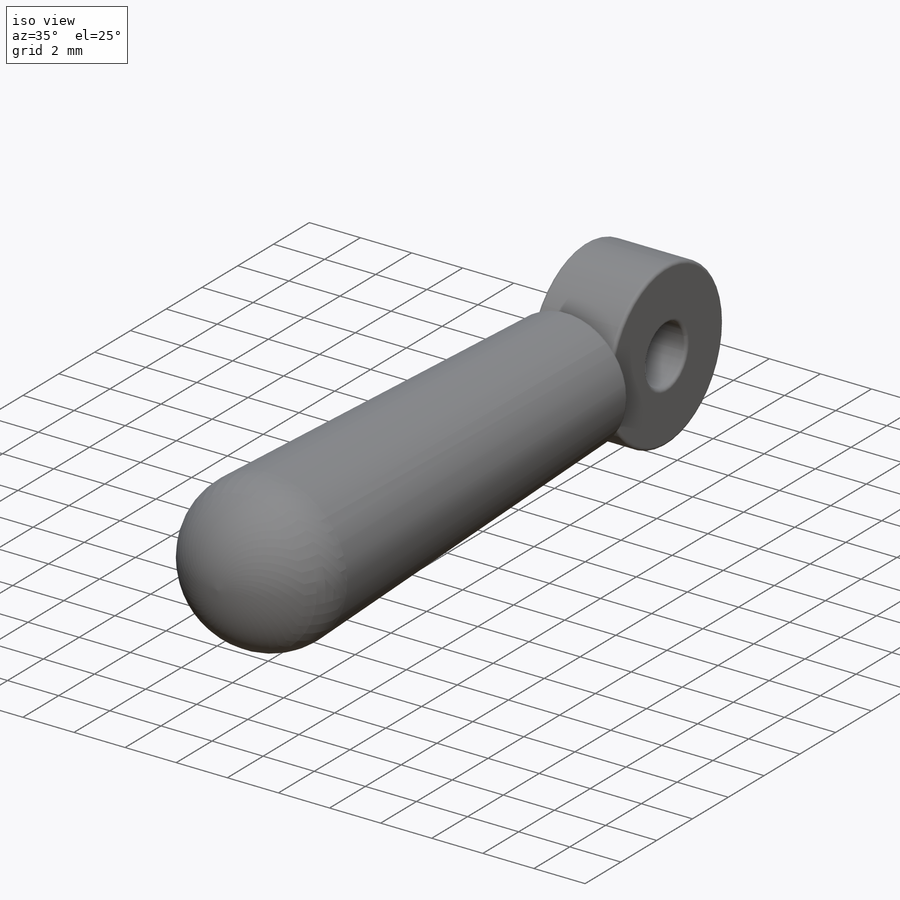
[diagram: iso view]
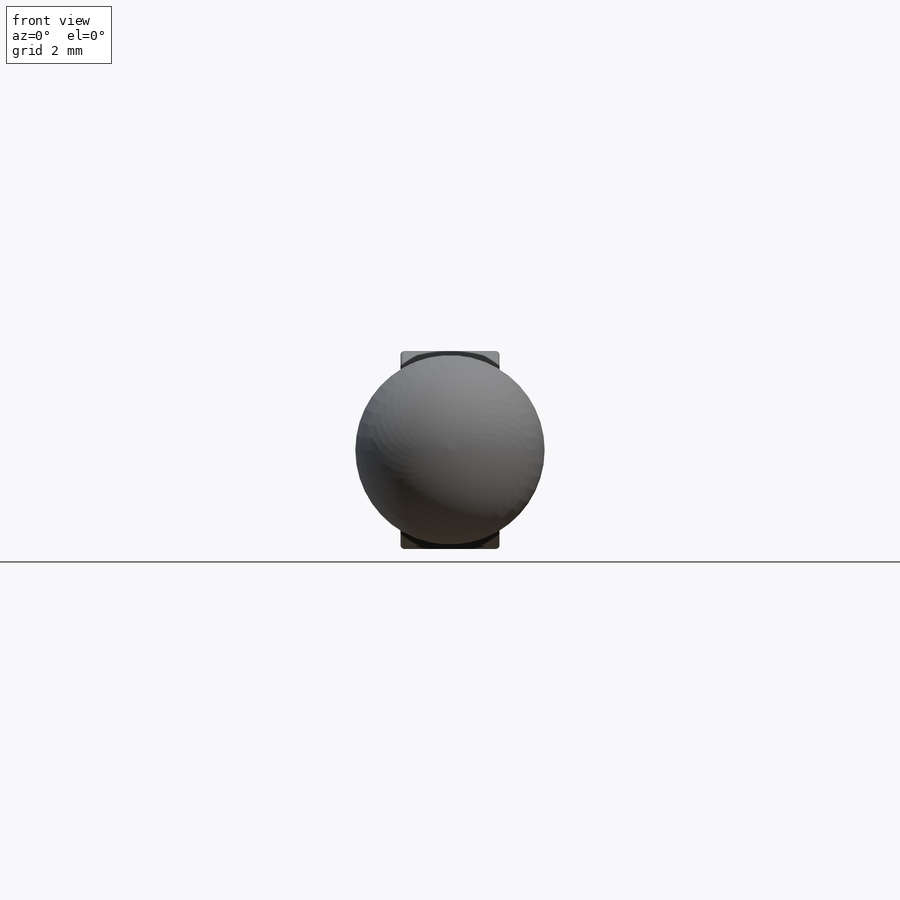
[diagram: front view]
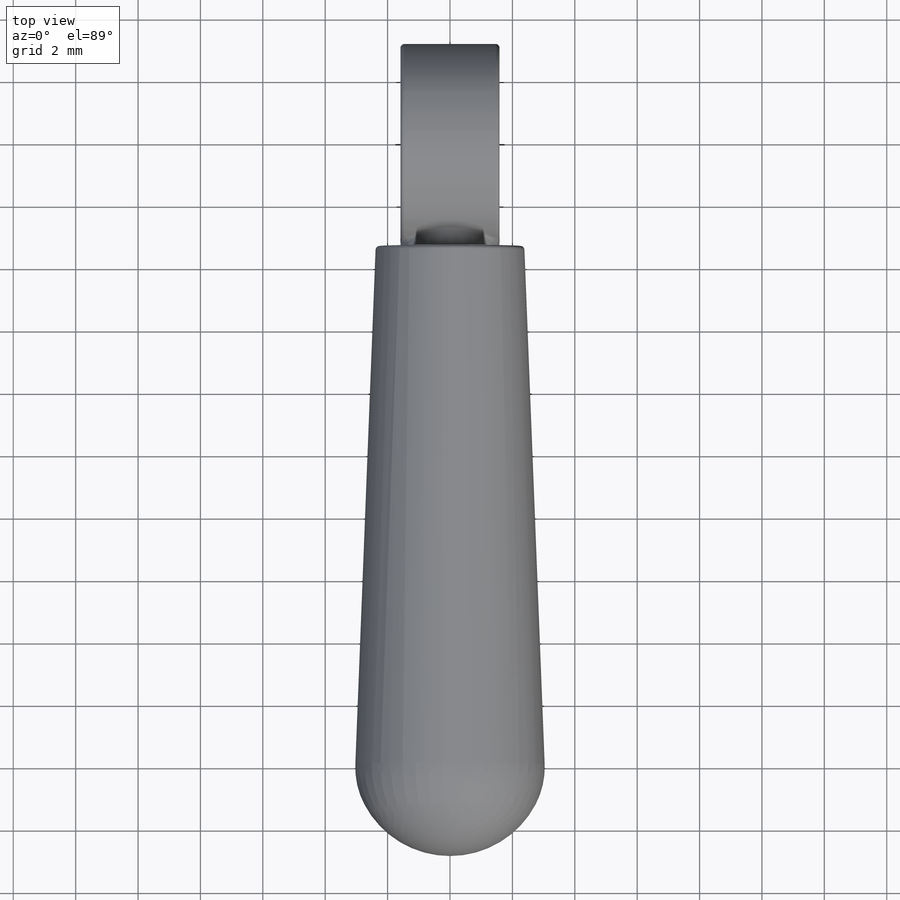
[diagram: top view]
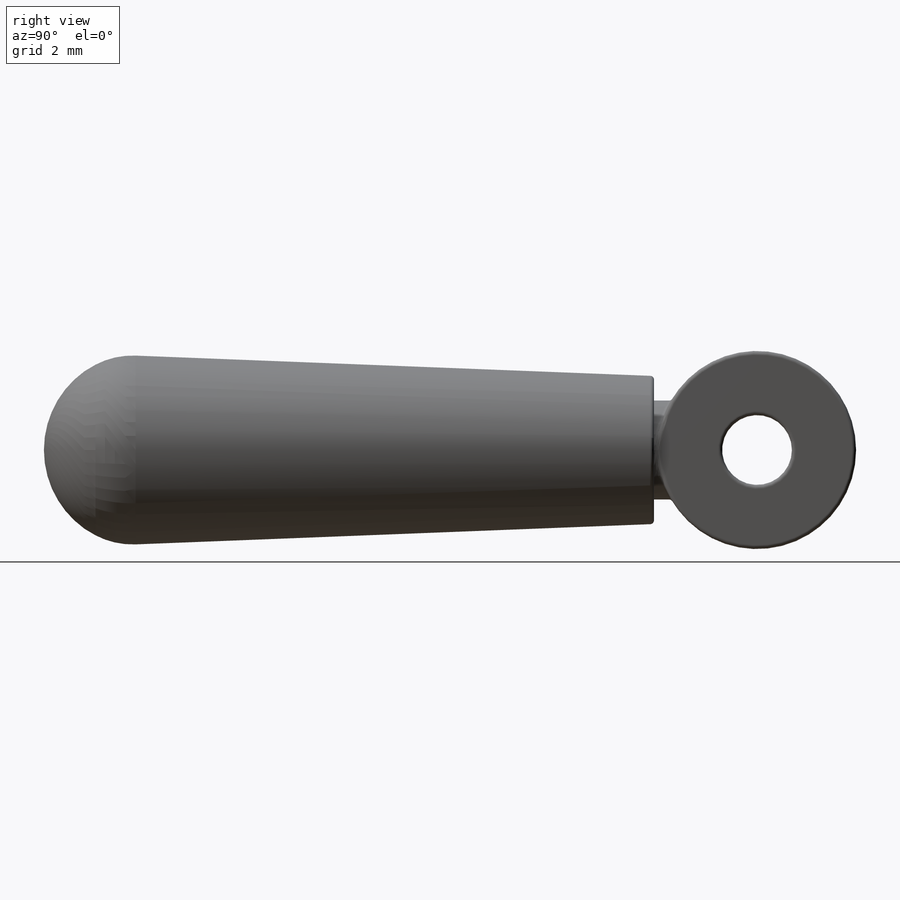
[diagram: right view]
SOLIDWORKS PART (.sldprt)
format: sldprt  version: not decoded by parser v0  size: 363,008 bytes
history: native  units: mm
features: sketch x4, extrude x3, fillet x2, material x1, dome x1, cut_extrude x1 (+16 scaffold rows collapsed)
feature tree (28):
  scaffold x16  (default folders/planes/origin — collapsed)
  material  "Stainless Steel (ferritic)"
  sketch  "Sketch1"  dims[D1=3.175mm]
  extrude  "Extrude1"  Depth=3.302mm
  sketch  "Sketch2"  dims[D1=4.7625mm]
  extrude  "Extrude2"  Depth=17.018mm
  dome  "Dome1"
  sketch  "Sketch3"  dims[D1=6.35mm D2=2.2352mm]
  extrude  "Extrude3"  Depth=1.5875mm
  sketch  "Sketch4"  dims[D1=2.2352mm]
  cut_extrude  "Extrude4"  [1 undecoded]
  fillet  "Fillet1"  Radius=2.54mm
  fillet  "Fillet2"  Radius=0.127mm
decode coverage: 9 of 11 modeling features carry decoded parameters
note: 1 parameter value undecoded
note: suppression state not decoded; provenance and decode notes live in map.json
